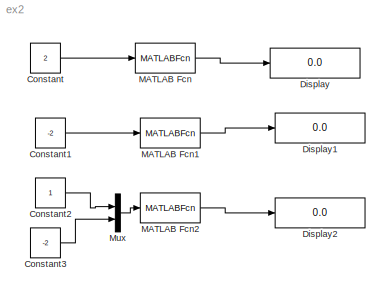
MODEL ex2
KIND model
BLOCK [Constant] Constant
  Value = 2
BLOCK [Constant] Constant1
  Value = -2
BLOCK [Constant] Constant2
BLOCK [Constant] Constant3
  Value = -2
BLOCK [Display] Display
  Decimation = 1
  Ports = [1]
BLOCK [Display] Display1
  Decimation = 1
  Ports = [1]
BLOCK [Display] Display2
  Decimation = 1
  Ports = [1]
BLOCK [MATLABFcn] MATLAB Fcn
  MATLABFcn = functief
BLOCK [MATLABFcn] MATLAB Fcn1
  MATLABFcn = functief
BLOCK [MATLABFcn] MATLAB Fcn2
  MATLABFcn = functieg(u(1), u(2))
BLOCK [Mux] Mux
  DisplayOption = bar
  Inputs = 2
  Ports = [2, 1]
LINE Constant1:1 -> MATLAB Fcn1:1
LINE Constant2:1 -> Mux:1
LINE Constant3:1 -> Mux:2
LINE Constant:1 -> MATLAB Fcn:1
LINE MATLAB Fcn1:1 -> Display1:1
LINE MATLAB Fcn2:1 -> Display2:1
LINE MATLAB Fcn:1 -> Display:1
LINE Mux:1 -> MATLAB Fcn2:1
